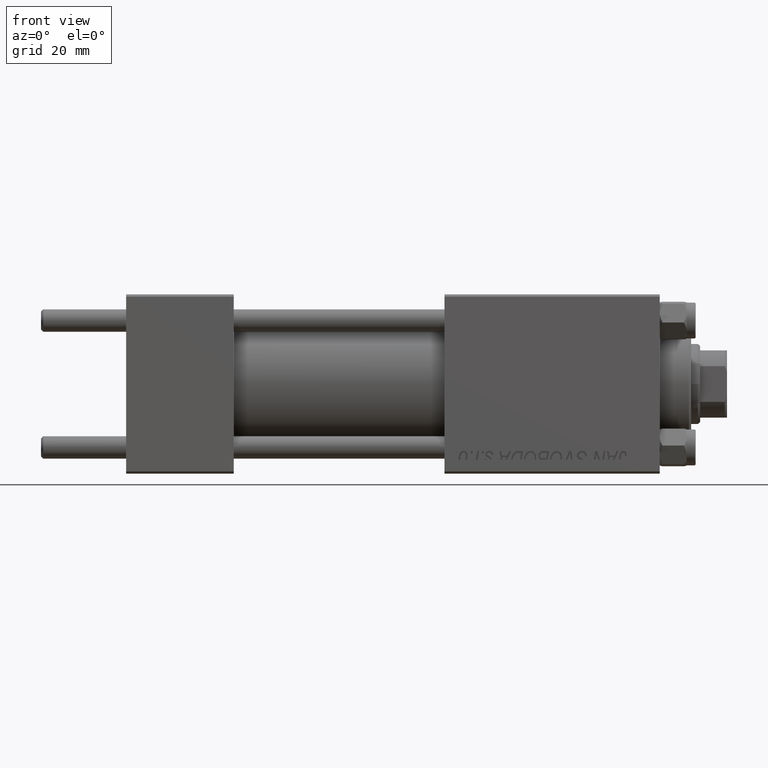
[diagram: clean part render]
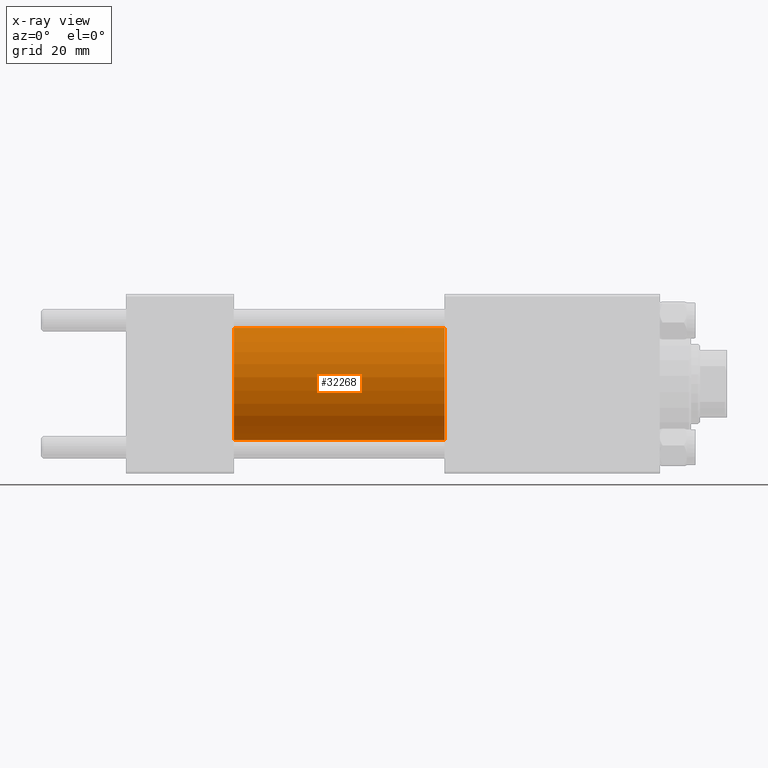
[diagram: x-ray — body ghosted, one internal face saturated and labeled with its STEP entity id]
A machine part, front view, then the same camera in x-ray: the body is ghosted and one INTERNAL B-rep face — a face not visible from any outside direction — is saturated and labeled: STEP entity #32268.
In plain terms, the highlighted cylindrical surface (partial cylindrical patch) has radius 12.5 mm, axis along (-1, -0, -0).
Its self-contained STEP definition (entity closure, byte-faithful):
#629 = VERTEX_POINT ( 'NONE', #6263 ) ;
#2401 = DIRECTION ( 'NONE',  ( 0.000000000000000000, 0.000000000000000000, -1.000000000000000000 ) ) ;
#2599 = VECTOR ( 'NONE', #31736, 1000.000000000000000 ) ;
#3420 = CARTESIAN_POINT ( 'NONE',  ( 71.00000000000001421, 0.000000000000000000, 12.49999999999999645 ) ) ;
#3497 = CARTESIAN_POINT ( 'NONE',  ( 71.00000000000001421, 0.000000000000000000, 0.000000000000000000 ) ) ;
#4961 = LINE ( 'NONE', #47115, #2599 ) ;
#5051 = VERTEX_POINT ( 'NONE', #3420 ) ;
#5218 = ORIENTED_EDGE ( 'NONE', *, *, #30468, .F. ) ;
#5320 = CARTESIAN_POINT ( 'NONE',  ( 71.00000000000001421, 1.530808498934191127E-15, -12.49999999999999645 ) ) ;
#6186 = DIRECTION ( 'NONE',  ( 1.000000000000000000, 0.000000000000000000, 0.000000000000000000 ) ) ;
#6263 = CARTESIAN_POINT ( 'NONE',  ( 24.00000000000000000, 1.530808498934191127E-15, -12.49999999999999645 ) ) ;
#6658 = DIRECTION ( 'NONE',  ( -1.000000000000000000, -0.000000000000000000, -0.000000000000000000 ) ) ;
#9591 = VERTEX_POINT ( 'NONE', #5320 ) ;
#10577 = VERTEX_POINT ( 'NONE', #11127 ) ;
#10697 = CYLINDRICAL_SURFACE ( 'NONE', #17790, 12.49999999999999645 ) ;
#10803 = ORIENTED_EDGE ( 'NONE', *, *, #47534, .T. ) ;
#11127 = CARTESIAN_POINT ( 'NONE',  ( 24.00000000000000000, 0.000000000000000000, 12.49999999999999645 ) ) ;
#11538 = VECTOR ( 'NONE', #12951, 1000.000000000000000 ) ;
#12951 = DIRECTION ( 'NONE',  ( -1.000000000000000000, -0.000000000000000000, -0.000000000000000000 ) ) ;
#16750 = LINE ( 'NONE', #47515, #11538 ) ;
#16874 = AXIS2_PLACEMENT_3D ( 'NONE', #37230, #6186, #2401 ) ;
#16878 = EDGE_CURVE ( 'NONE', #5051, #10577, #16750, .T. ) ;
#17790 = AXIS2_PLACEMENT_3D ( 'NONE', #33915, #6658, #22067 ) ;
#18378 = EDGE_LOOP ( 'NONE', ( #10803, #47609, #5218, #20571 ) ) ;
#20571 = ORIENTED_EDGE ( 'NONE', *, *, #16878, .F. ) ;
#22067 = DIRECTION ( 'NONE',  ( 0.000000000000000000, 0.000000000000000000, 1.000000000000000000 ) ) ;
#26351 = FACE_OUTER_BOUND ( 'NONE', #18378, .T. ) ;
#30468 = EDGE_CURVE ( 'NONE', #10577, #629, #32190, .T. ) ;
#31736 = DIRECTION ( 'NONE',  ( -1.000000000000000000, -0.000000000000000000, -0.000000000000000000 ) ) ;
#32190 = CIRCLE ( 'NONE', #16874, 12.49999999999999645 ) ;
#32268 = ADVANCED_FACE ( 'NONE', ( #26351 ), #10697, .F. ) ;
#33915 = CARTESIAN_POINT ( 'NONE',  ( 71.00000000000001421, 0.000000000000000000, 0.000000000000000000 ) ) ;
#37230 = CARTESIAN_POINT ( 'NONE',  ( 24.00000000000000000, 0.000000000000000000, 0.000000000000000000 ) ) ;
#38318 = DIRECTION ( 'NONE',  ( 1.000000000000000000, 0.000000000000000000, 0.000000000000000000 ) ) ;
#40420 = EDGE_CURVE ( 'NONE', #9591, #629, #4961, .T. ) ;
#40816 = AXIS2_PLACEMENT_3D ( 'NONE', #3497, #38318, #49670 ) ;
#44811 = CIRCLE ( 'NONE', #40816, 12.49999999999999645 ) ;
#47115 = CARTESIAN_POINT ( 'NONE',  ( 71.00000000000001421, 1.530808498934191127E-15, -12.49999999999999645 ) ) ;
#47515 = CARTESIAN_POINT ( 'NONE',  ( 71.00000000000001421, 0.000000000000000000, 12.49999999999999645 ) ) ;
#47534 = EDGE_CURVE ( 'NONE', #5051, #9591, #44811, .T. ) ;
#47609 = ORIENTED_EDGE ( 'NONE', *, *, #40420, .T. ) ;
#49670 = DIRECTION ( 'NONE',  ( 0.000000000000000000, 0.000000000000000000, -1.000000000000000000 ) ) ;